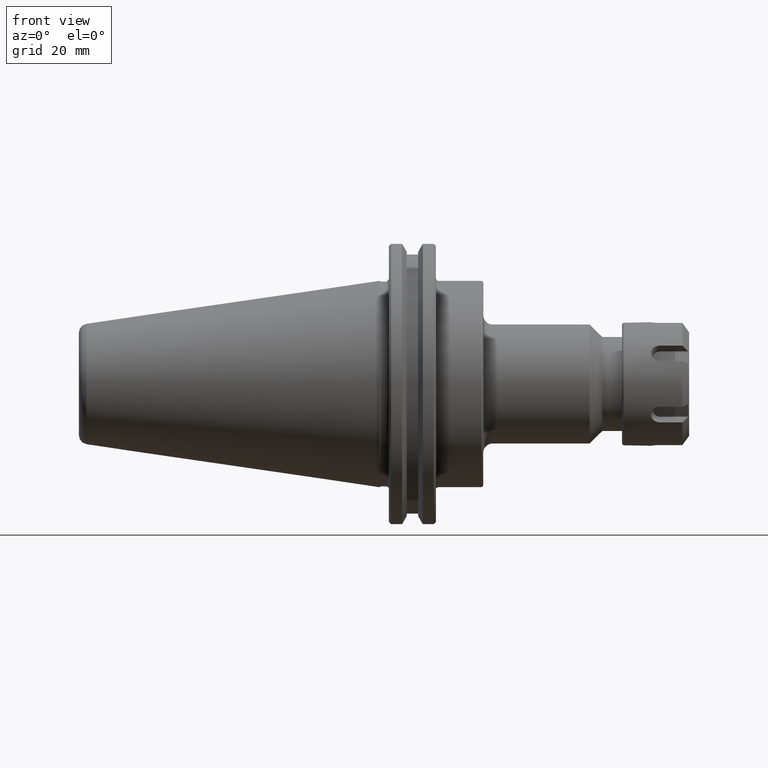
[diagram: clean part render]
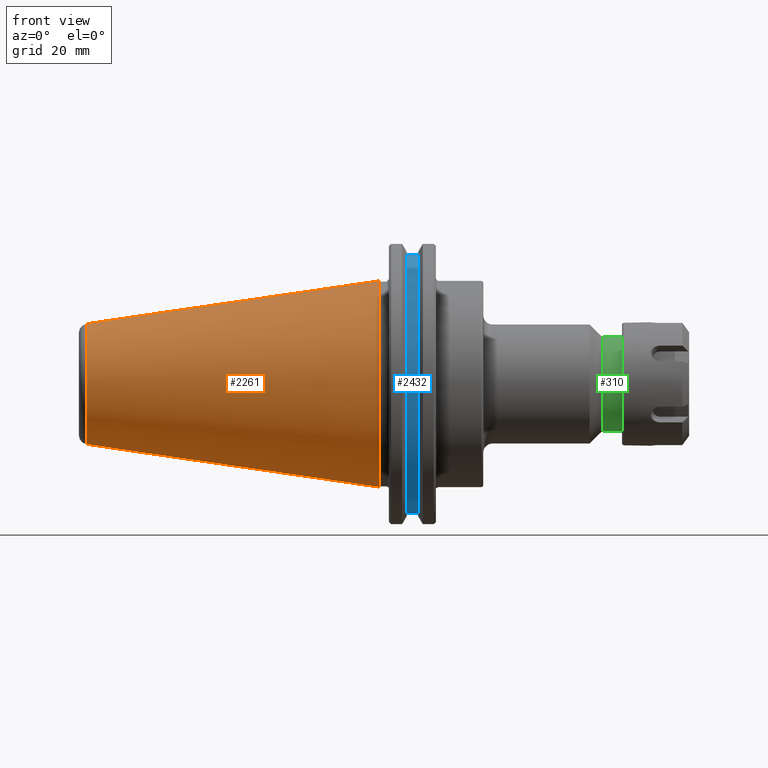
[diagram: same view with three faces highlighted in distinct colors, each labeled with its STEP entity id]
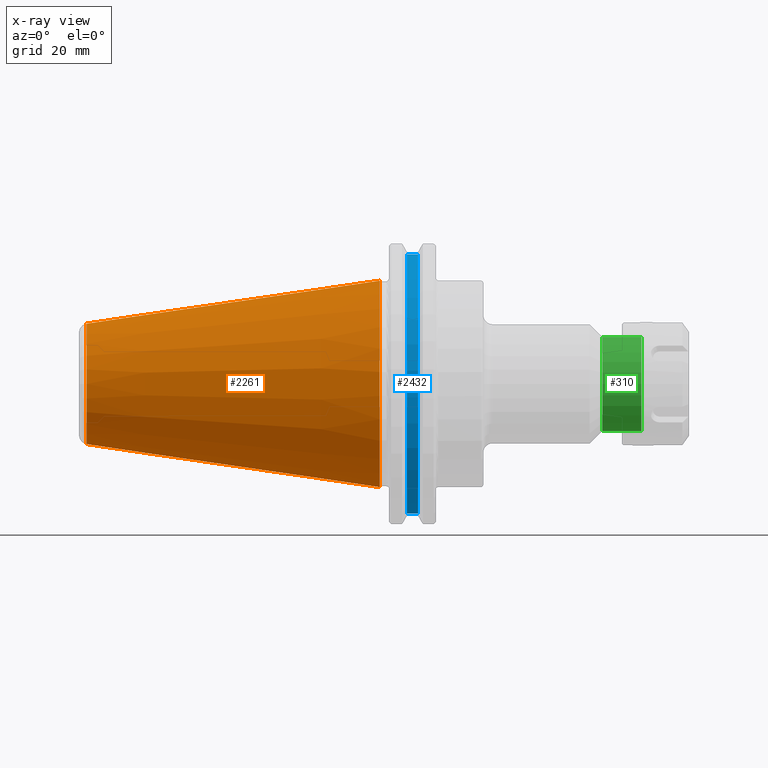
[diagram: x-ray of the same camera — body ghosted, the three highlighted faces saturated]
A machine part, front view with three faces highlighted in distinct colors.
The next image is the same camera in x-ray (body ghosted, the three faces saturated) — at least one of them is partly hidden behind the body in this view.
Their STEP definitions:

[orange] entity #2261 — the highlighted conical surface has half-angle 8.297 deg.
#2068=CARTESIAN_POINT('',(0.0,1.375,0.0));
#2069=VERTEX_POINT('',#2068);
#2070=CARTESIAN_POINT('',(0.0,0.0,0.0));
#2071=DIRECTION('',(1.0,1.033781E-013,0.0));
#2072=DIRECTION('',(-1.033781E-013,1.0,0.0));
#2073=AXIS2_PLACEMENT_3D('',#2070,#2071,#2072);
#2074=CIRCLE('',#2073,1.375);
#2075=EDGE_CURVE('',#2069,#2069,#2074,.T.);
#2226=CARTESIAN_POINT('',(-3.897316526722477,0.806651410560644,-1.975726E-016));
#2227=VERTEX_POINT('',#2226);
#2228=CARTESIAN_POINT('',(-3.897316526722475,1.188900E-014,-9.878631E-017));
#2229=DIRECTION('',(-1.0,0.0,0.0));
#2230=DIRECTION('',(0.0,-1.0,0.0));
#2231=AXIS2_PLACEMENT_3D('',#2228,#2229,#2230);
#2232=CIRCLE('',#2231,0.806651410560633);
#2233=EDGE_CURVE('',#2227,#2227,#2232,.T.);
#2250=CARTESIAN_POINT('',(-2.0,0.0,0.0));
#2251=DIRECTION('',(1.0,0.0,0.0));
#2252=DIRECTION('',(-1.033781E-013,1.0,0.0));
#2253=AXIS2_PLACEMENT_3D('',#2250,#2251,#2252);
#2254=CONICAL_SURFACE('',#2253,1.083338501354761,8.29699999999999);
#2255=ORIENTED_EDGE('',*,*,#2075,.F.);
#2256=EDGE_LOOP('',(#2255));
#2257=FACE_OUTER_BOUND('',#2256,.T.);
#2258=ORIENTED_EDGE('',*,*,#2233,.F.);
#2259=EDGE_LOOP('',(#2258));
#2260=FACE_BOUND('',#2259,.T.);
#2261=ADVANCED_FACE('',(#2257,#2260),#2254,.T.);

[blue] entity #2432 — the highlighted cylindrical surface (partial cylindrical patch) has radius 45.6438 mm, axis along (-1, -0, 0).
#665=CARTESIAN_POINT('',(0.362850000000034,-0.507499999999821,1.723848238679686));
#666=VERTEX_POINT('',#665);
#673=CARTESIAN_POINT('',(0.513850000000034,-0.507499999999821,1.723848238679665));
#674=VERTEX_POINT('',#673);
#675=CARTESIAN_POINT('',(0.513850000000034,-0.507499999999813,1.723848238679676));
#676=DIRECTION('',(-1.0,-1.029346E-013,0.0));
#677=VECTOR('',#676,0.151);
#678=LINE('',#675,#677);
#679=EDGE_CURVE('',#674,#666,#678,.T.);
#933=CARTESIAN_POINT('',(0.513850000000034,-0.50749999999974,-1.723848238679689));
#934=VERTEX_POINT('',#933);
#941=CARTESIAN_POINT('',(0.362850000000034,-0.507499999999756,-1.723848238679705));
#942=VERTEX_POINT('',#941);
#943=CARTESIAN_POINT('',(0.362850000000034,-0.507499999999756,-1.723848238679697));
#944=DIRECTION('',(1.0,1.029346E-013,0.0));
#945=VECTOR('',#944,0.151);
#946=LINE('',#943,#945);
#947=EDGE_CURVE('',#942,#934,#946,.T.);
#2403=CARTESIAN_POINT('',(0.362849999999981,2.442670E-013,0.0));
#2404=DIRECTION('',(-1.0,-1.033610E-013,0.0));
#2405=DIRECTION('',(-1.033610E-013,1.0,0.0));
#2406=AXIS2_PLACEMENT_3D('',#2403,#2404,#2405);
#2407=CIRCLE('',#2406,1.796999999999756);
#2408=EDGE_CURVE('',#942,#666,#2407,.T.);
#2415=CARTESIAN_POINT('',(0.438349999999981,2.520721E-013,0.0));
#2416=DIRECTION('',(-1.0,-1.033781E-013,0.0));
#2417=DIRECTION('',(-1.033610E-013,1.0,0.0));
#2418=AXIS2_PLACEMENT_3D('',#2415,#2416,#2417);
#2419=CYLINDRICAL_SURFACE('',#2418,1.796999999999748);
#2420=ORIENTED_EDGE('',*,*,#947,.T.);
#2421=CARTESIAN_POINT('',(0.513849999999981,2.598771E-013,0.0));
#2422=DIRECTION('',(-1.0,-1.033610E-013,0.0));
#2423=DIRECTION('',(-1.033610E-013,1.0,0.0));
#2424=AXIS2_PLACEMENT_3D('',#2421,#2422,#2423);
#2425=CIRCLE('',#2424,1.79699999999974);
#2426=EDGE_CURVE('',#934,#674,#2425,.T.);
#2427=ORIENTED_EDGE('',*,*,#2426,.T.);
#2428=ORIENTED_EDGE('',*,*,#679,.T.);
#2429=ORIENTED_EDGE('',*,*,#2408,.F.);
#2430=EDGE_LOOP('',(#2420,#2427,#2428,#2429));
#2431=FACE_OUTER_BOUND('',#2430,.T.);
#2432=ADVANCED_FACE('',(#2431),#2419,.T.);

[green] entity #310 — the highlighted cylindrical surface (bore or boss wall) has radius 16 mm, axis along (1, 0, 0).
#268=CARTESIAN_POINT('',(3.484,0.62992125984252,7.714311E-017));
#269=VERTEX_POINT('',#268);
#270=CARTESIAN_POINT('',(3.484,0.0,0.0));
#271=DIRECTION('',(1.0,0.0,0.0));
#272=DIRECTION('',(0.0,-1.0,0.0));
#273=AXIS2_PLACEMENT_3D('',#270,#271,#272);
#274=CIRCLE('',#273,0.62992125984252);
#275=EDGE_CURVE('',#269,#269,#274,.T.);
#291=CARTESIAN_POINT('',(3.244,0.0,0.0));
#292=DIRECTION('',(1.0,0.0,0.0));
#293=DIRECTION('',(0.0,1.0,0.0));
#294=AXIS2_PLACEMENT_3D('',#291,#292,#293);
#295=CYLINDRICAL_SURFACE('',#294,0.62992125984252);
#296=CARTESIAN_POINT('',(2.964,0.62992125984252,0.0));
#297=VERTEX_POINT('',#296);
#298=CARTESIAN_POINT('',(2.964,0.0,0.0));
#299=DIRECTION('',(1.0,0.0,0.0));
#300=DIRECTION('',(0.0,1.0,0.0));
#301=AXIS2_PLACEMENT_3D('',#298,#299,#300);
#302=CIRCLE('',#301,0.62992125984252);
#303=EDGE_CURVE('',#297,#297,#302,.T.);
#304=ORIENTED_EDGE('',*,*,#303,.T.);
#305=EDGE_LOOP('',(#304));
#306=FACE_OUTER_BOUND('',#305,.T.);
#307=ORIENTED_EDGE('',*,*,#275,.F.);
#308=EDGE_LOOP('',(#307));
#309=FACE_BOUND('',#308,.T.);
#310=ADVANCED_FACE('',(#306,#309),#295,.T.);